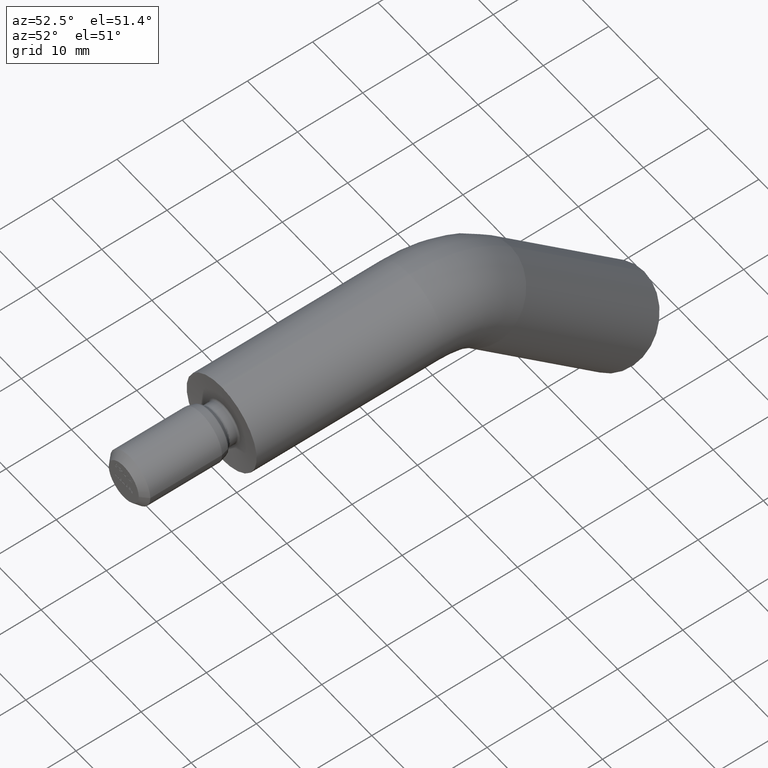
[diagram: clean part render]
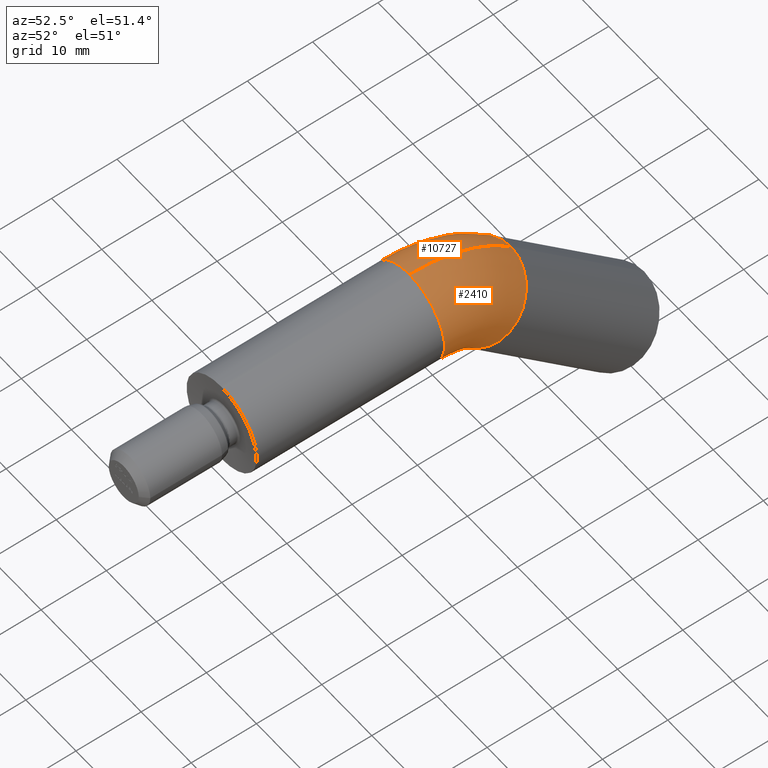
[diagram: same view with one multi-face feature highlighted, each face labeled with its STEP entity id]
A machine part, auxiliary view. The highlighted faces form ONE feature: a constant-radius fillet chain: 2 tangent blend faces with common blend radius 7 mm. The faces share edges in the B-rep.
Their STEP definitions:
[1] entity #10727 (Torus):
#272 = EDGE_CURVE ( 'NONE', #4493, #6126, #11096, .T. ) ;
#447 = EDGE_CURVE ( 'NONE', #4493, #7214, #8082, .T. ) ;
#481 = ORIENTED_EDGE ( 'NONE', *, *, #11850, .F. ) ;
#1336 = VERTEX_POINT ( 'NONE', #10220 ) ;
#1344 = AXIS2_PLACEMENT_3D ( 'NONE', #5776, #3046, #3961 ) ;
#1792 = DIRECTION ( 'NONE',  ( 0.0000000000000000000, 0.0000000000000000000, 1.000000000000000000 ) ) ;
#1927 = FACE_OUTER_BOUND ( 'NONE', #6260, .T. ) ;
#2985 = CARTESIAN_POINT ( 'NONE',  ( 0.0000000000000000000, 28.78679656440364800, -15.00000000000000000 ) ) ;
#3046 = DIRECTION ( 'NONE',  ( -1.000000000000000000, -0.0000000000000000000, -0.0000000000000000000 ) ) ;
#3350 = CARTESIAN_POINT ( 'NONE',  ( 0.0000000000000000000, 28.78679656440364800, -7.000000000000000000 ) ) ;
#3455 = CIRCLE ( 'NONE', #8210, 7.000000000000000900 ) ;
#3838 = ORIENTED_EDGE ( 'NONE', *, *, #447, .T. ) ;
#3961 = DIRECTION ( 'NONE',  ( 0.0000000000000000000, 0.0000000000000000000, 1.000000000000000000 ) ) ;
#4276 = ORIENTED_EDGE ( 'NONE', *, *, #272, .F. ) ;
#4493 = VERTEX_POINT ( 'NONE', #3350 ) ;
#5119 = ORIENTED_EDGE ( 'NONE', *, *, #8918, .T. ) ;
#5318 = TOROIDAL_SURFACE ( 'NONE', #6798, 15.00000000000000000, 7.000000000000000000 ) ;
#5392 = CARTESIAN_POINT ( 'NONE',  ( 0.0000000000000000000, 28.78679656440364800, -15.00000000000000000 ) ) ;
#5505 = CIRCLE ( 'NONE', #10193, 22.00000000000000000 ) ;
#5776 = CARTESIAN_POINT ( 'NONE',  ( 8.572527594031473200E-016, 28.78679656440364800, -15.00000000000000000 ) ) ;
#6080 = DIRECTION ( 'NONE',  ( 0.0000000000000000000, 0.7071067811865463500, -0.7071067811865487900 ) ) ;
#6126 = VERTEX_POINT ( 'NONE', #9041 ) ;
#6238 = DIRECTION ( 'NONE',  ( 0.0000000000000000000, 0.0000000000000000000, 1.000000000000000000 ) ) ;
#6260 = EDGE_LOOP ( 'NONE', ( #3838, #5119, #481, #4276 ) ) ;
#6798 = AXIS2_PLACEMENT_3D ( 'NONE', #5392, #9053, #6238 ) ;
#7202 = DIRECTION ( 'NONE',  ( 0.0000000000000000000, 1.000000000000000000, 0.0000000000000000000 ) ) ;
#7214 = VERTEX_POINT ( 'NONE', #7743 ) ;
#7743 = CARTESIAN_POINT ( 'NONE',  ( 8.572527594031473200E-016, 28.78679656440364800, 7.000000000000000000 ) ) ;
#8075 = AXIS2_PLACEMENT_3D ( 'NONE', #10922, #7202, #1792 ) ;
#8082 = CIRCLE ( 'NONE', #8075, 7.000000000000000000 ) ;
#8210 = AXIS2_PLACEMENT_3D ( 'NONE', #8892, #6080, #9791 ) ;
#8892 = CARTESIAN_POINT ( 'NONE',  ( 0.0000000000000000000, 39.39339828220188600, -4.393398282201803600 ) ) ;
#8918 = EDGE_CURVE ( 'NONE', #7214, #1336, #5505, .T. ) ;
#9041 = CARTESIAN_POINT ( 'NONE',  ( 8.572527594031473200E-016, 34.44365081389604200, -9.343145750507629200 ) ) ;
#9053 = DIRECTION ( 'NONE',  ( -1.000000000000000000, -0.0000000000000000000, -0.0000000000000000000 ) ) ;
#9323 = DIRECTION ( 'NONE',  ( -1.000000000000000000, -0.0000000000000000000, -0.0000000000000000000 ) ) ;
#9791 = DIRECTION ( 'NONE',  ( 0.0000000000000000000, 0.7071067811865487900, 0.7071067811865462400 ) ) ;
#10193 = AXIS2_PLACEMENT_3D ( 'NONE', #2985, #9323, #11168 ) ;
#10220 = CARTESIAN_POINT ( 'NONE',  ( 0.0000000000000000000, 44.34314575050772300, 0.5563491861040212900 ) ) ;
#10727 = ADVANCED_FACE ( 'NONE', ( #1927 ), #5318, .T. ) ;
#10922 = CARTESIAN_POINT ( 'NONE',  ( 0.0000000000000000000, 28.78679656440364800, 0.0000000000000000000 ) ) ;
#11096 = CIRCLE ( 'NONE', #1344, 8.000000000000000000 ) ;
#11168 = DIRECTION ( 'NONE',  ( 0.0000000000000000000, 0.0000000000000000000, 1.000000000000000000 ) ) ;
#11850 = EDGE_CURVE ( 'NONE', #6126, #1336, #3455, .T. ) ;
[2] entity #2410 (Torus):
#103 = ORIENTED_EDGE ( 'NONE', *, *, #7866, .F. ) ;
#272 = EDGE_CURVE ( 'NONE', #4493, #6126, #11096, .T. ) ;
#332 = DIRECTION ( 'NONE',  ( 0.0000000000000000000, 1.000000000000000000, 0.0000000000000000000 ) ) ;
#744 = AXIS2_PLACEMENT_3D ( 'NONE', #9447, #6794, #1383 ) ;
#1031 = AXIS2_PLACEMENT_3D ( 'NONE', #1789, #6334, #9107 ) ;
#1336 = VERTEX_POINT ( 'NONE', #10220 ) ;
#1344 = AXIS2_PLACEMENT_3D ( 'NONE', #5776, #3046, #3961 ) ;
#1383 = DIRECTION ( 'NONE',  ( 0.0000000000000000000, 0.7071067811865487900, 0.7071067811865462400 ) ) ;
#1772 = ORIENTED_EDGE ( 'NONE', *, *, #4373, .T. ) ;
#1789 = CARTESIAN_POINT ( 'NONE',  ( 0.0000000000000000000, 28.78679656440364800, -15.00000000000000000 ) ) ;
#1880 = TOROIDAL_SURFACE ( 'NONE', #1031, 15.00000000000000000, 7.000000000000000000 ) ;
#2410 = ADVANCED_FACE ( 'NONE', ( #4852 ), #1880, .T. ) ;
#2985 = CARTESIAN_POINT ( 'NONE',  ( 0.0000000000000000000, 28.78679656440364800, -15.00000000000000000 ) ) ;
#3038 = DIRECTION ( 'NONE',  ( 0.0000000000000000000, 0.0000000000000000000, 1.000000000000000000 ) ) ;
#3046 = DIRECTION ( 'NONE',  ( -1.000000000000000000, -0.0000000000000000000, -0.0000000000000000000 ) ) ;
#3350 = CARTESIAN_POINT ( 'NONE',  ( 0.0000000000000000000, 28.78679656440364800, -7.000000000000000000 ) ) ;
#3845 = CIRCLE ( 'NONE', #10713, 7.000000000000000000 ) ;
#3961 = DIRECTION ( 'NONE',  ( 0.0000000000000000000, 0.0000000000000000000, 1.000000000000000000 ) ) ;
#4299 = ORIENTED_EDGE ( 'NONE', *, *, #8918, .F. ) ;
#4373 = EDGE_CURVE ( 'NONE', #7214, #4493, #3845, .T. ) ;
#4493 = VERTEX_POINT ( 'NONE', #3350 ) ;
#4852 = FACE_OUTER_BOUND ( 'NONE', #8008, .T. ) ;
#5505 = CIRCLE ( 'NONE', #10193, 22.00000000000000000 ) ;
#5645 = CIRCLE ( 'NONE', #744, 7.000000000000000900 ) ;
#5776 = CARTESIAN_POINT ( 'NONE',  ( 8.572527594031473200E-016, 28.78679656440364800, -15.00000000000000000 ) ) ;
#5921 = CARTESIAN_POINT ( 'NONE',  ( 0.0000000000000000000, 28.78679656440364800, 0.0000000000000000000 ) ) ;
#6126 = VERTEX_POINT ( 'NONE', #9041 ) ;
#6334 = DIRECTION ( 'NONE',  ( -1.000000000000000000, -0.0000000000000000000, -0.0000000000000000000 ) ) ;
#6794 = DIRECTION ( 'NONE',  ( 0.0000000000000000000, 0.7071067811865463500, -0.7071067811865487900 ) ) ;
#7214 = VERTEX_POINT ( 'NONE', #7743 ) ;
#7743 = CARTESIAN_POINT ( 'NONE',  ( 8.572527594031473200E-016, 28.78679656440364800, 7.000000000000000000 ) ) ;
#7866 = EDGE_CURVE ( 'NONE', #1336, #6126, #5645, .T. ) ;
#8008 = EDGE_LOOP ( 'NONE', ( #4299, #1772, #10177, #103 ) ) ;
#8918 = EDGE_CURVE ( 'NONE', #7214, #1336, #5505, .T. ) ;
#9041 = CARTESIAN_POINT ( 'NONE',  ( 8.572527594031473200E-016, 34.44365081389604200, -9.343145750507629200 ) ) ;
#9107 = DIRECTION ( 'NONE',  ( 0.0000000000000000000, 0.0000000000000000000, 1.000000000000000000 ) ) ;
#9323 = DIRECTION ( 'NONE',  ( -1.000000000000000000, -0.0000000000000000000, -0.0000000000000000000 ) ) ;
#9447 = CARTESIAN_POINT ( 'NONE',  ( 0.0000000000000000000, 39.39339828220188600, -4.393398282201803600 ) ) ;
#10177 = ORIENTED_EDGE ( 'NONE', *, *, #272, .T. ) ;
#10193 = AXIS2_PLACEMENT_3D ( 'NONE', #2985, #9323, #11168 ) ;
#10220 = CARTESIAN_POINT ( 'NONE',  ( 0.0000000000000000000, 44.34314575050772300, 0.5563491861040212900 ) ) ;
#10713 = AXIS2_PLACEMENT_3D ( 'NONE', #5921, #332, #3038 ) ;
#11096 = CIRCLE ( 'NONE', #1344, 8.000000000000000000 ) ;
#11168 = DIRECTION ( 'NONE',  ( 0.0000000000000000000, 0.0000000000000000000, 1.000000000000000000 ) ) ;